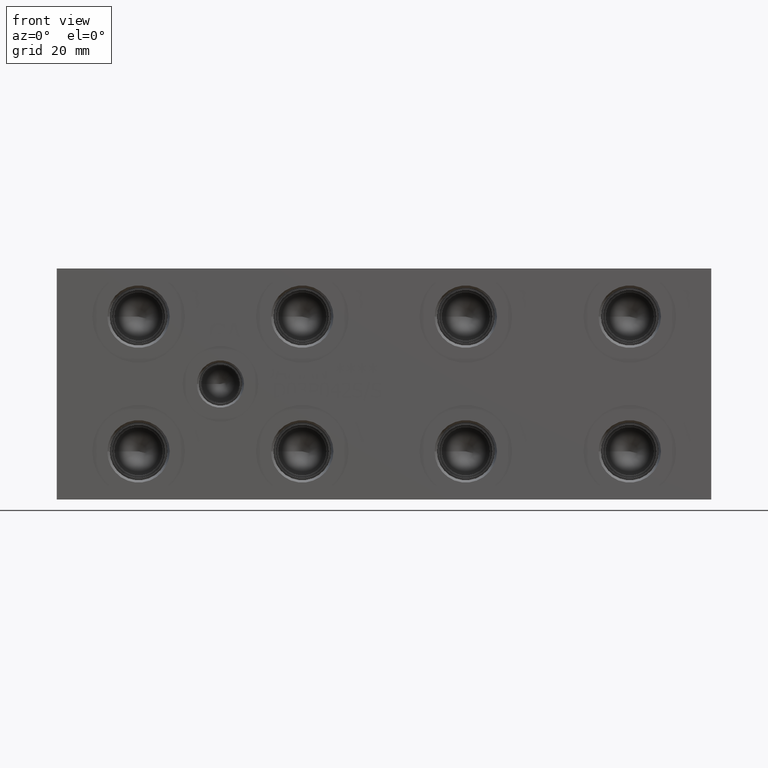
[diagram: clean part render]
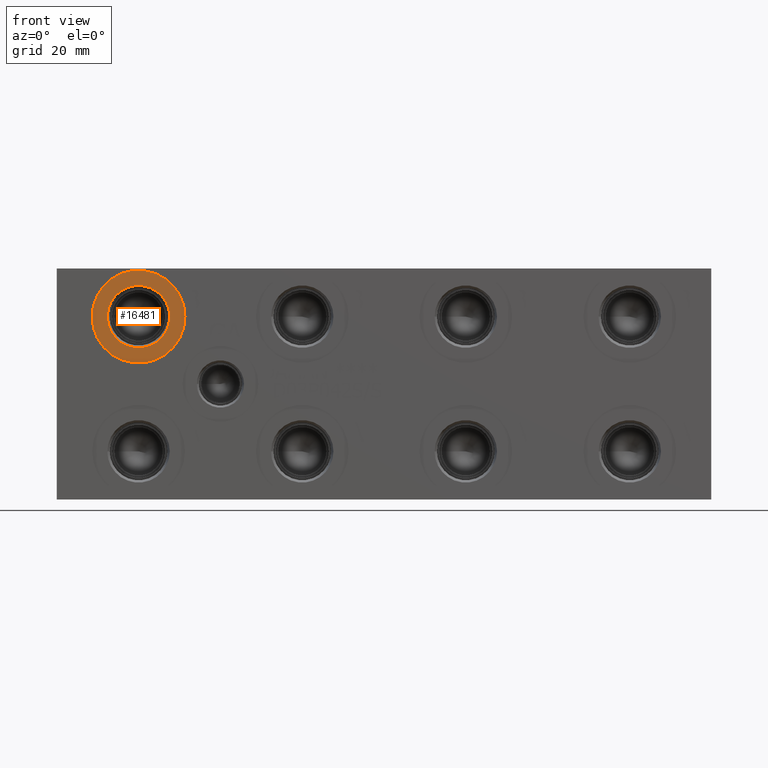
[diagram: same view with one face highlighted and labeled with its STEP entity id]
A machine part, front view. The second image highlights one B-rep face of the part: STEP entity #16481.
In plain terms, the highlighted planar face has unit normal (0, 1, 0).
Its self-contained STEP definition (entity closure, byte-faithful):
#518=CIRCLE('',#17440,15.3162);
#519=CIRCLE('',#17441,15.3162);
#520=CIRCLE('',#17443,10.2997);
#521=CIRCLE('',#17444,10.2997);
#839=FACE_BOUND('',#3189,.T.);
#2221=FACE_OUTER_BOUND('',#3188,.T.);
#3188=EDGE_LOOP('',(#14076,#14077));
#3189=EDGE_LOOP('',(#14078,#14079));
#7564=VERTEX_POINT('',#28157);
#7565=VERTEX_POINT('',#28159);
#7566=VERTEX_POINT('',#28163);
#7567=VERTEX_POINT('',#28164);
#9807=EDGE_CURVE('',#7564,#7565,#518,.T.);
#9808=EDGE_CURVE('',#7565,#7564,#519,.T.);
#9809=EDGE_CURVE('',#7566,#7567,#520,.T.);
#9810=EDGE_CURVE('',#7567,#7566,#521,.T.);
#14076=ORIENTED_EDGE('',*,*,#9808,.F.);
#14077=ORIENTED_EDGE('',*,*,#9807,.F.);
#14078=ORIENTED_EDGE('',*,*,#9809,.T.);
#14079=ORIENTED_EDGE('',*,*,#9810,.T.);
#15158=PLANE('',#17442);
#16481=ADVANCED_FACE('',(#2221,#839),#15158,.F.);
#17440=AXIS2_PLACEMENT_3D('',#28160,#20743,#20744);
#17441=AXIS2_PLACEMENT_3D('',#28161,#20745,#20746);
#17442=AXIS2_PLACEMENT_3D('',#28162,#20747,#20748);
#17443=AXIS2_PLACEMENT_3D('',#28165,#20749,#20750);
#17444=AXIS2_PLACEMENT_3D('',#28166,#20751,#20752);
#20743=DIRECTION('center_axis',(0.,1.,0.));
#20744=DIRECTION('ref_axis',(1.,0.,0.));
#20745=DIRECTION('center_axis',(0.,1.,0.));
#20746=DIRECTION('ref_axis',(1.,0.,0.));
#20747=DIRECTION('center_axis',(0.,1.,0.));
#20748=DIRECTION('ref_axis',(0.,0.,1.));
#20749=DIRECTION('center_axis',(0.,1.,0.));
#20750=DIRECTION('ref_axis',(1.,0.,0.));
#20751=DIRECTION('center_axis',(0.,1.,0.));
#20752=DIRECTION('ref_axis',(1.,0.,0.));
#28157=CARTESIAN_POINT('',(11.6586,0.7874,60.325));
#28159=CARTESIAN_POINT('',(42.291,0.7874,60.325));
#28160=CARTESIAN_POINT('Origin',(26.9748,0.7874,60.325));
#28161=CARTESIAN_POINT('Origin',(26.9748,0.7874,60.325));
#28162=CARTESIAN_POINT('Origin',(37.2745,0.7874,60.325));
#28163=CARTESIAN_POINT('',(37.2745,0.7874,60.325));
#28164=CARTESIAN_POINT('',(16.6751,0.787399999999999,60.325));
#28165=CARTESIAN_POINT('Origin',(26.9748,0.7874,60.325));
#28166=CARTESIAN_POINT('Origin',(26.9748,0.7874,60.325));